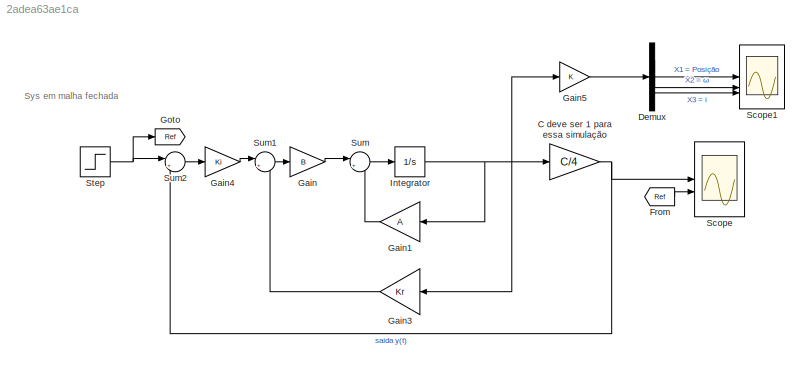
MODEL slx_2adea63ae1ca
KIND model
CONFIG AbsTol = auto
CONFIG EnableMultiTasking = off
CONFIG FixedStep = auto
CONFIG MaxStep = auto
CONFIG MinStep = auto
CONFIG RelTol = 1e-3
CONFIG SampleTimeConstraint = Unconstrained
CONFIG SolverName = ode4
CONFIG StartTime = 0.0
CONFIG StopTime = 14
BLOCK [Gain] C deve ser 1 para essa simulação
  Gain = C/4
  Multiplication = Matrix(K*u)
BLOCK [Demux] Demux
  Outputs = 3
BLOCK [From] From
  GotoTag = Ref
BLOCK [Gain] Gain
  Gain = B
  Multiplication = Matrix(K*u)
BLOCK [Gain] Gain1
  Gain = A
  Multiplication = Matrix(K*u)
  NameLocation = top
BLOCK [Gain] Gain3
  Gain = Kr
  Multiplication = Matrix(K*u)
  NameLocation = top
BLOCK [Gain] Gain4
  Gain = Ki
BLOCK [Gain] Gain5
BLOCK [Goto] Goto
  GotoTag = Ref
BLOCK [Integrator] Integrator
BLOCK [Scope] Scope
  Floating = off
  NumInputPorts = 2
  ScopeSpecificationString = Simulink.scopes.TimeScopeBlockCfg('CurrentConfiguration', extmgr.ConfigurationSet(extmgr.Configuration('Core','General UI',true),extmgr.Configuration('Core','Source UI',true),extmgr.Configuration('Sources','WiredSimulink',true,'DataLoggingVariableName','ScopeData1'),extmgr.Configuration('Visuals','Time Domain',true,'SerializedDisplays',{struct('MinYLimReal','-3.14159','MaxYLimReal','28.27433','YLa...<+1498ch>
BLOCK [Scope] Scope1
  Floating = off
  NumInputPorts = 3
  ScopeSpecificationString = Simulink.scopes.TimeScopeBlockCfg('CurrentConfiguration', extmgr.ConfigurationSet(extmgr.Configuration('Core','General UI',true),extmgr.Configuration('Core','Source UI',true),extmgr.Configuration('Sources','WiredSimulink',true),extmgr.Configuration('Visuals','Time Domain',true,'SerializedDisplays',{struct('MinYLimReal','-3.12683','MaxYLimReal','28.14144','YLabelReal','','MinYLimMag','0.00000','Max...<+2985ch>
BLOCK [Step] Step
  After = theta_ref
  SampleTime = 0
BLOCK [Sum] Sum
  Inputs = |++
BLOCK [Sum] Sum1
  Inputs = |+-
BLOCK [Sum] Sum2
  Inputs = |+-
ANNOTATION (root): Sys em malha fechada
NET C deve ser 1 para essa simulação:1 -> Scope:1, Sum2:2
LINE Demux:1 -> Scope1:1
LINE Demux:2 -> Scope1:2
LINE Demux:3 -> Scope1:3
LINE From:1 -> Scope:2
LINE Gain1:1 -> Sum:2
LINE Gain3:1 -> Sum1:2
LINE Gain4:1 -> Sum1:1
LINE Gain5:1 -> Demux:1
LINE Gain:1 -> Sum:1
NET Integrator:1 -> C deve ser 1 para essa simulação:1, Gain1:1, Gain3:1, Gain5:1
NET Step:1 -> Goto:1, Sum2:1
LINE Sum1:1 -> Gain:1
LINE Sum2:1 -> Gain4:1
LINE Sum:1 -> Integrator:1
note: NET lines group one-source signal fan-out (src -> all destinations, sorted); 1:1 wires keep LINE
